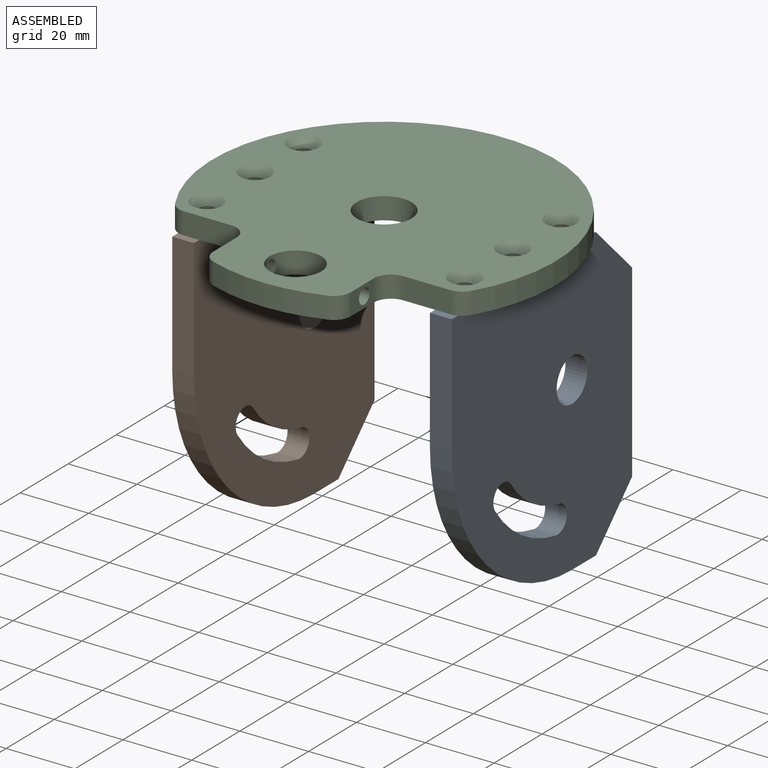
[diagram: assembled view]
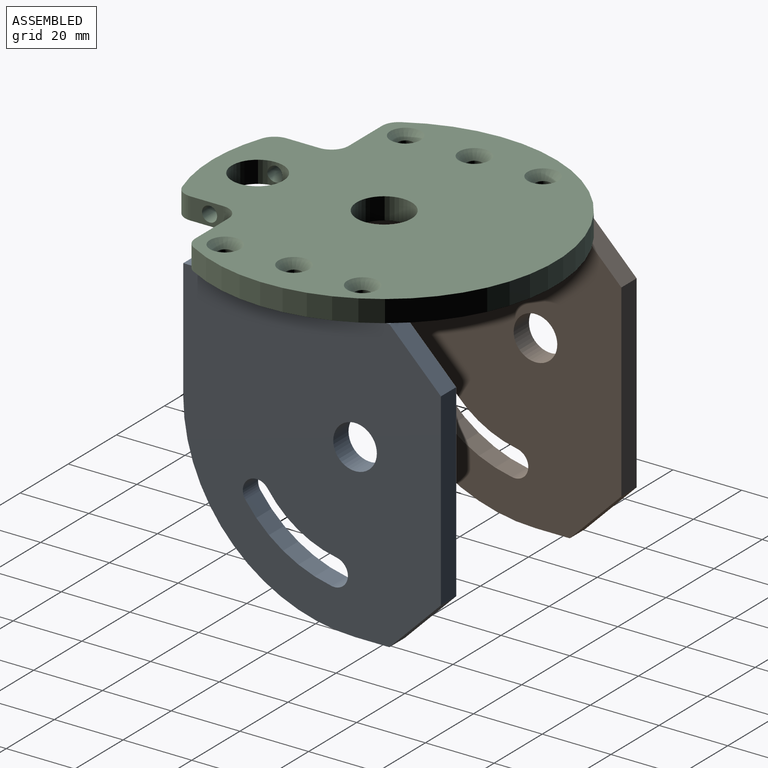
[diagram: assembled view, second angle]
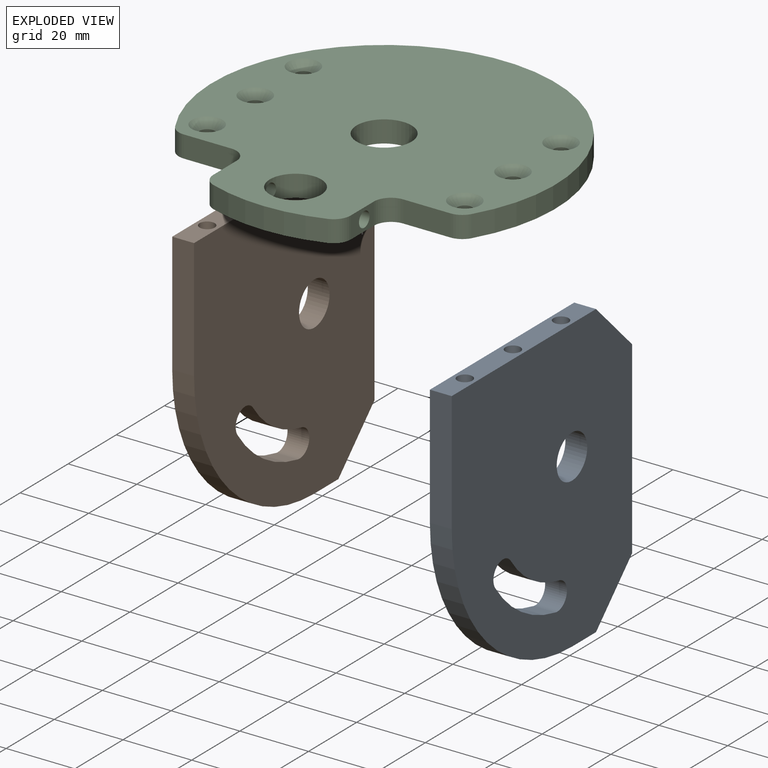
[diagram: exploded view]
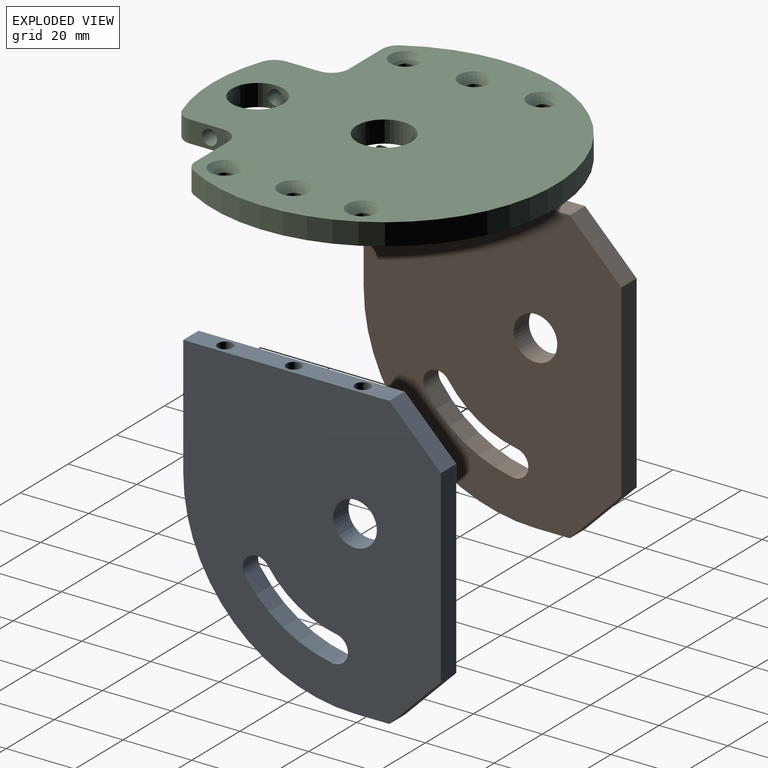
[diagram: exploded view, second angle]
ASSEMBLY  parts=3 mates=2
PART A: 20 faces, bbox 6.4x75x85 mm
  f0: plane 55x6.35mm, normal (0,1,0), area 349.2mm2, adj f10,f11,f12,f13
  f1: plane 10x6.35mm, normal (0,0,1), area 63.5mm2, adj f2,f10,f11,f13
  f2: cylinder r=50mm len=50mm, axis (-1,0,0), area 498.7mm2, adj f1,f3,f10,f11
  f3: plane 35x6.35mm, normal (0,-1,0), area 222.2mm2, adj f2,f9,f10,f11
  f4: cylinder r=31mm len=20.01mm, axis (-1,0,0), area 154.6mm2, adj f5,f7,f10,f11
  f5: cylinder r=4mm len=7.28mm, axis (-1,0,0), area 79.8mm2, adj f4,f6,f10,f11
  f6: cylinder r=39mm len=25.17mm, axis (-1,0,0), area 194.5mm2, adj f5,f7,f10,f11
  f7: cylinder r=4mm len=7.94mm, axis (-1,0,0), area 79.8mm2, adj f4,f6,f10,f11
  f8: cylinder r=6.35mm len=12.7mm, axis (-1,0,0), area 253.4mm2, adj f10,f11
  f9: plane 60x6.35mm, normal (0,0,-1), area 335.4mm2, adj f3,f10,f11,f12,f14,f16,f18
  f10: plane 85x75mm, normal (1,0,0), area 5216.6mm2, adj f0,f1,f2,f3,f4,f5,f6,f7
  f11: plane 85x75mm, normal (-1,0,0), area 5216.6mm2, adj f0,f1,f2,f3,f4,f5,f6,f7
  f12: plane 15x15mm, normal (0,0.71,-0.71), area 134.7mm2, adj f0,f9,f10,f11
  f13: plane 15x15mm, normal (0,0.71,0.71), area 134.7mm2, adj f0,f1,f10,f11
  f14: cylinder r=2.2mm len=15mm, axis (0,0,-1), area 207.3mm2, adj f9,f15
  f15: cone r=0mm half-angle=59deg, axis (0,0,-1), area 17.7mm2, adj f14
  f16: cylinder r=2.2mm len=15mm, axis (0,0,-1), area 207.3mm2, adj f9,f17
  f17: cone r=0mm half-angle=59deg, axis (0,0,-1), area 17.7mm2, adj f16
  f18: cylinder r=2.2mm len=15mm, axis (0,0,-1), area 207.3mm2, adj f9,f19
  f19: cone r=0mm half-angle=59deg, axis (0,0,-1), area 17.7mm2, adj f18
PART B: same geometry as A
PART C: 30 faces, bbox 100x100x6.4 mm
  f0: cylinder r=2.2mm len=12.83mm, axis (1,0,0), area 175.1mm2, adj f20,f29
  f1: cylinder r=50mm len=33.33mm, axis (0,0,-1), area 215.8mm2, adj f2,f3,f23,f25
  f2: plane 100x100mm, normal (0,0,1), area 6638.6mm2, adj f1,f4,f6,f8,f10,f12,f14,f16
  f3: plane 100x100mm, normal (0,0,-1), area 6925.6mm2, adj f1,f4,f5,f7,f9,f11,f13,f15
  f4: cylinder r=50mm len=100mm, axis (0,0,-1), area 1335.3mm2, adj f2,f3,f24,f26
  f5: cylinder r=2.2mm len=4.4mm, axis (0,0,1), area 56.3mm2, adj f3,f6
  f6: cone r=2.2mm half-angle=45deg, axis (0,0,1), area 67.7mm2, adj f2,f5
  f7: cylinder r=2.2mm len=4.4mm, axis (0,0,1), area 56.3mm2, adj f3,f8
  f8: cone r=2.2mm half-angle=45deg, axis (0,0,1), area 67.7mm2, adj f2,f7
  f9: cylinder r=2.2mm len=4.4mm, axis (0,0,1), area 56.3mm2, adj f3,f10
  f10: cone r=2.2mm half-angle=45deg, axis (0,0,1), area 67.7mm2, adj f2,f9
  f11: cylinder r=2.2mm len=4.4mm, axis (0,0,1), area 56.3mm2, adj f3,f12
  f12: cone r=2.2mm half-angle=45deg, axis (0,0,1), area 67.7mm2, adj f2,f11
  f13: cylinder r=2.2mm len=4.4mm, axis (0,0,1), area 56.3mm2, adj f3,f14
  f14: cone r=2.2mm half-angle=45deg, axis (0,0,1), area 67.7mm2, adj f2,f13
  f15: cylinder r=2.2mm len=4.4mm, axis (0,0,1), area 56.3mm2, adj f3,f16
  f16: cone r=2.2mm half-angle=45deg, axis (0,0,1), area 67.7mm2, adj f2,f15
  f17: cylinder r=8mm len=16mm, axis (0,0,1), area 319.2mm2, adj f2,f3
  f18: plane 13.78x6.35mm, normal (0,-1,0), area 87.5mm2, adj f2,f3,f22,f24
  f19: plane 9.6x6.35mm, normal (1,0,0), area 45.8mm2, adj f2,f3,f22,f23,f28
  f20: plane 9.6x6.35mm, normal (-1,0,0), area 45.8mm2, adj f0,f2,f3,f25,f27
  f21: plane 13.78x6.35mm, normal (0,-1,0), area 87.5mm2, adj f2,f3,f26,f27
  f22: cylinder r=5mm len=6.35mm, axis (0,0,-1), area 49.9mm2, adj f2,f3,f18,f19
  f23: cylinder r=5mm len=6.35mm, axis (0,0,-1), area 39.1mm2, adj f1,f2,f3,f19
  f24: cylinder r=5mm len=6.35mm, axis (0,0,-1), area 33mm2, adj f2,f3,f4,f18
  f25: cylinder r=5mm len=6.35mm, axis (0,0,-1), area 39.1mm2, adj f1,f2,f3,f20
  f26: cylinder r=5mm len=6.35mm, axis (0,0,-1), area 33mm2, adj f2,f3,f4,f21
  f27: cylinder r=5mm len=6.35mm, axis (0,0,-1), area 49.9mm2, adj f2,f3,f20,f21
  f28: cylinder r=2.2mm len=12.83mm, axis (1,0,0), area 175.1mm2, adj f19,f29
  f29: cylinder r=7.5mm len=15mm, axis (0,0,1), area 268.5mm2, adj f0,f2,f3,f28
PLACE A rot(axis=(0,1,0),180deg) t=(40.68,45,0)mm
PLACE B rot(axis=(0,1,0),180deg) t=(-34.32,45,0)mm
PLACE C at identity fixed
MATE fastened B.f14 <-> C.f9  axis (0,0,1) through (-37.5,-20,0)mm
MATE fastened A.f14 <-> C.f15  axis (0,0,1) through (37.5,-20,0)mm
